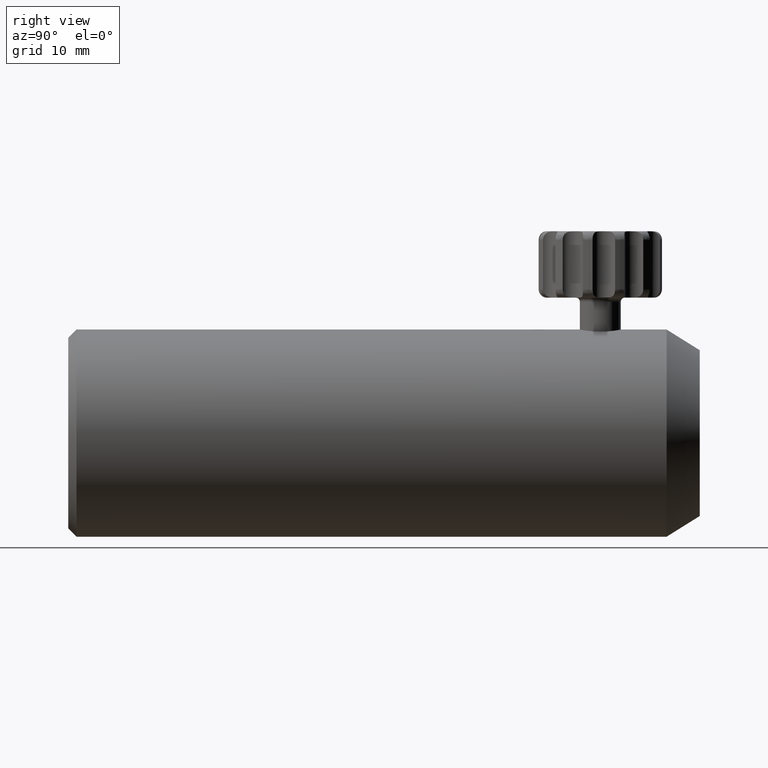
[diagram: clean part render]
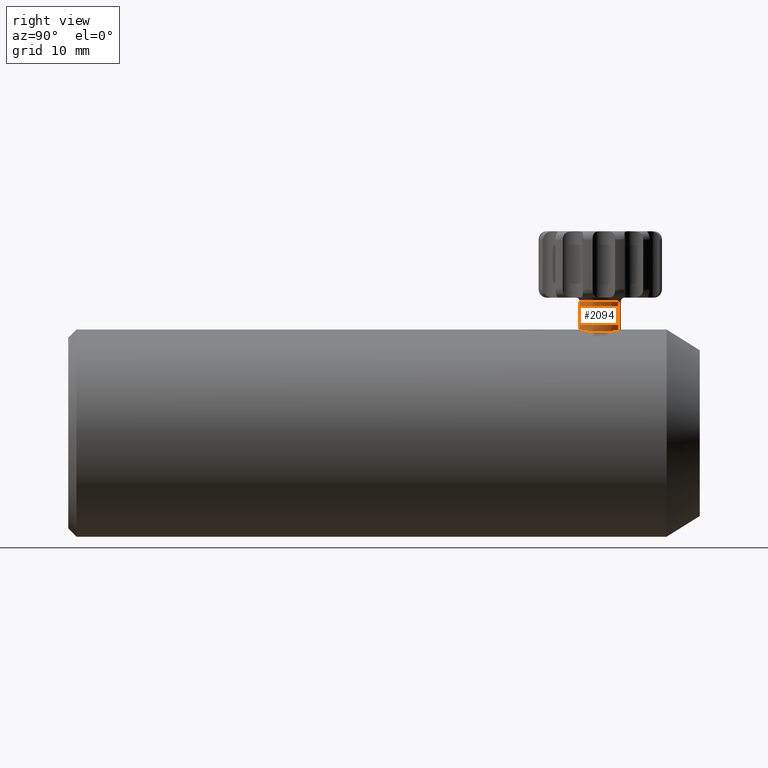
[diagram: same view with one face highlighted and labeled with its STEP entity id]
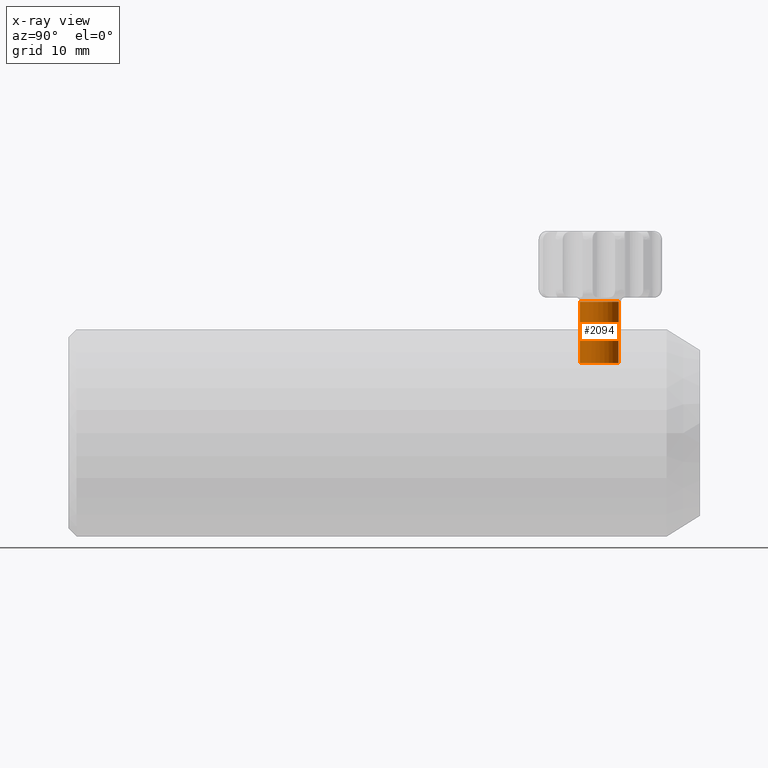
[diagram: x-ray of the same camera — body ghosted, the highlighted face saturated]
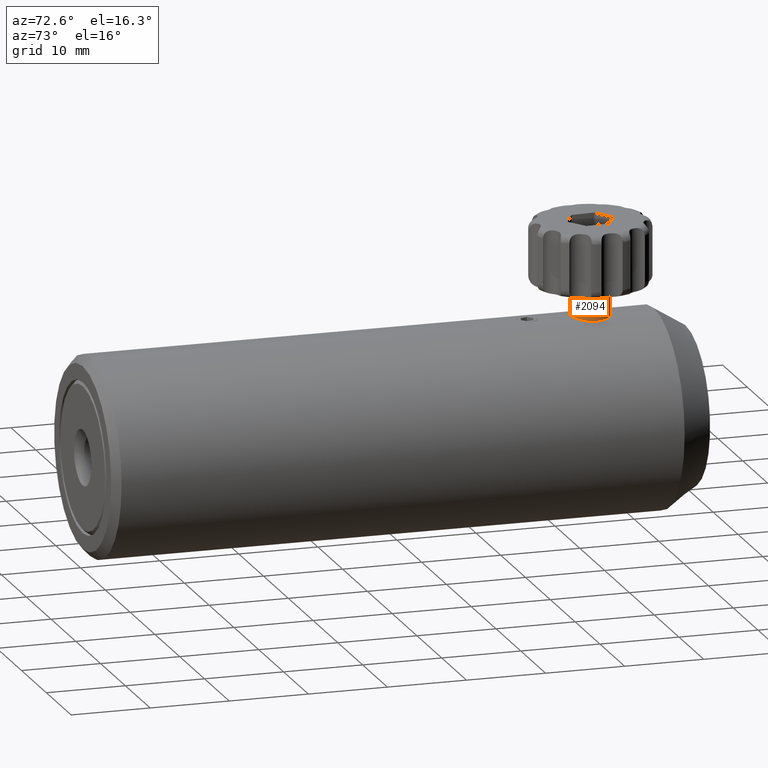
[diagram: same view with one face highlighted and labeled with its STEP entity id]
A machine part, right view. The second image highlights one B-rep face of the part: STEP entity #2094.
The next image is the same camera in x-ray: the body ghosted, the highlighted face saturated — about 0% of this face is hidden behind the body in this view.
A second angle (auxiliary view) of the same face is appended — the face is thin or edge-on in the first view.
In plain terms, the highlighted cylindrical surface (edge-blend (fillet) strip) has radius 2.4702 mm, axis along (0, -0, 1).
Its self-contained STEP definition (entity closure, byte-faithful):
#83 = ORIENTED_EDGE ( 'NONE', *, *, #637, .F. ) ;
#99 = VERTEX_POINT ( 'NONE', #2998 ) ;
#122 = VERTEX_POINT ( 'NONE', #5059 ) ;
#206 = DIRECTION ( 'NONE',  ( 7.216449660063533300E-016, -1.486441178477628800E-016, 1.000000000000000000 ) ) ;
#290 = ORIENTED_EDGE ( 'NONE', *, *, #4541, .T. ) ;
#351 = ORIENTED_EDGE ( 'NONE', *, *, #3539, .T. ) ;
#432 = CYLINDRICAL_SURFACE ( 'NONE', #1596, 2.470155112205955300 ) ;
#525 = CARTESIAN_POINT ( 'NONE',  ( -1.109883397136934200, 52.26496764441674300, 8.464858828943446800 ) ) ;
#618 = DIRECTION ( 'NONE',  ( 0.4493172884782037900, 0.8933722484354407200, 0.0000000000000000000 ) ) ;
#637 = EDGE_CURVE ( 'NONE', #1004, #1031, #2658, .T. ) ;
#815 = FACE_OUTER_BOUND ( 'NONE', #3625, .T. ) ;
#958 = EDGE_CURVE ( 'NONE', #122, #1031, #2104, .T. ) ;
#1004 = VERTEX_POINT ( 'NONE', #2586 ) ;
#1031 = VERTEX_POINT ( 'NONE', #2553 ) ;
#1106 = ORIENTED_EDGE ( 'NONE', *, *, #958, .T. ) ;
#1249 = CARTESIAN_POINT ( 'NONE',  ( 6.410162027363484400E-014, 54.47173567099246600, 77.09721697122451200 ) ) ;
#1596 = AXIS2_PLACEMENT_3D ( 'NONE', #1249, #4030, #2003 ) ;
#1695 = CARTESIAN_POINT ( 'NONE',  ( 1.457342451511258700E-014, 54.47173567099247300, 8.464858828943446800 ) ) ;
#1712 = DIRECTION ( 'NONE',  ( 7.216449660063533300E-016, -1.486441178477628800E-016, 1.000000000000000000 ) ) ;
#1758 = DIRECTION ( 'NONE',  ( 7.216449660063533300E-016, -1.486441178477628800E-016, 1.000000000000000000 ) ) ;
#2003 = DIRECTION ( 'NONE',  ( 0.4493172884782039000, 0.8933722484354407200, 0.0000000000000000000 ) ) ;
#2094 = ADVANCED_FACE ( 'NONE', ( #815 ), #432, .T. ) ;
#2104 = LINE ( 'NONE', #2157, #5091 ) ;
#2157 = CARTESIAN_POINT ( 'NONE',  ( 1.109883397137017400, 56.67850369756819600, 77.09721697122451200 ) ) ;
#2214 = VECTOR ( 'NONE', #4039, 1000.000000000000000 ) ;
#2273 = LINE ( 'NONE', #4932, #2214 ) ;
#2553 = CARTESIAN_POINT ( 'NONE',  ( 1.109883397136973300, 56.67850369756820300, 15.85000000000000000 ) ) ;
#2580 = EDGE_CURVE ( 'NONE', #3982, #1004, #2273, .T. ) ;
#2586 = CARTESIAN_POINT ( 'NONE',  ( -1.109883397136932200, 52.26496764441673500, 15.85000000000000000 ) ) ;
#2627 = AXIS2_PLACEMENT_3D ( 'NONE', #3711, #1712, #3362 ) ;
#2658 = CIRCLE ( 'NONE', #2627, 2.470155112205955300 ) ;
#2997 = DIRECTION ( 'NONE',  ( 7.216449660063533300E-016, -1.486441178477628800E-016, 1.000000000000000000 ) ) ;
#2998 = CARTESIAN_POINT ( 'NONE',  ( 2.206768026575741900, 53.36185227385551900, 8.464858828943445000 ) ) ;
#3158 = CIRCLE ( 'NONE', #3420, 2.470155112205955300 ) ;
#3285 = AXIS2_PLACEMENT_3D ( 'NONE', #4701, #206, #618 ) ;
#3362 = DIRECTION ( 'NONE',  ( 0.4493172884782039000, 0.8933722484354407200, 0.0000000000000000000 ) ) ;
#3420 = AXIS2_PLACEMENT_3D ( 'NONE', #1695, #1758, #4553 ) ;
#3539 = EDGE_CURVE ( 'NONE', #3982, #99, #4445, .T. ) ;
#3625 = EDGE_LOOP ( 'NONE', ( #5058, #351, #290, #1106, #83 ) ) ;
#3711 = CARTESIAN_POINT ( 'NONE',  ( 1.990287446445181300E-014, 54.47173567099247300, 15.85000000000000000 ) ) ;
#3982 = VERTEX_POINT ( 'NONE', #525 ) ;
#4030 = DIRECTION ( 'NONE',  ( 7.216449660063533300E-016, -1.486441178477628800E-016, 1.000000000000000000 ) ) ;
#4039 = DIRECTION ( 'NONE',  ( 7.216449660063533300E-016, -1.486441178477628800E-016, 1.000000000000000000 ) ) ;
#4445 = CIRCLE ( 'NONE', #3285, 2.470155112205955300 ) ;
#4541 = EDGE_CURVE ( 'NONE', #99, #122, #3158, .T. ) ;
#4553 = DIRECTION ( 'NONE',  ( 0.4493172884782037900, 0.8933722484354407200, 0.0000000000000000000 ) ) ;
#4701 = CARTESIAN_POINT ( 'NONE',  ( 1.457342451511258700E-014, 54.47173567099247300, 8.464858828943446800 ) ) ;
#4932 = CARTESIAN_POINT ( 'NONE',  ( -1.109883397136889300, 52.26496764441672800, 77.09721697122451200 ) ) ;
#5058 = ORIENTED_EDGE ( 'NONE', *, *, #2580, .F. ) ;
#5059 = CARTESIAN_POINT ( 'NONE',  ( 1.109883397136967500, 56.67850369756820300, 8.464858828943446800 ) ) ;
#5091 = VECTOR ( 'NONE', #2997, 1000.000000000000000 ) ;